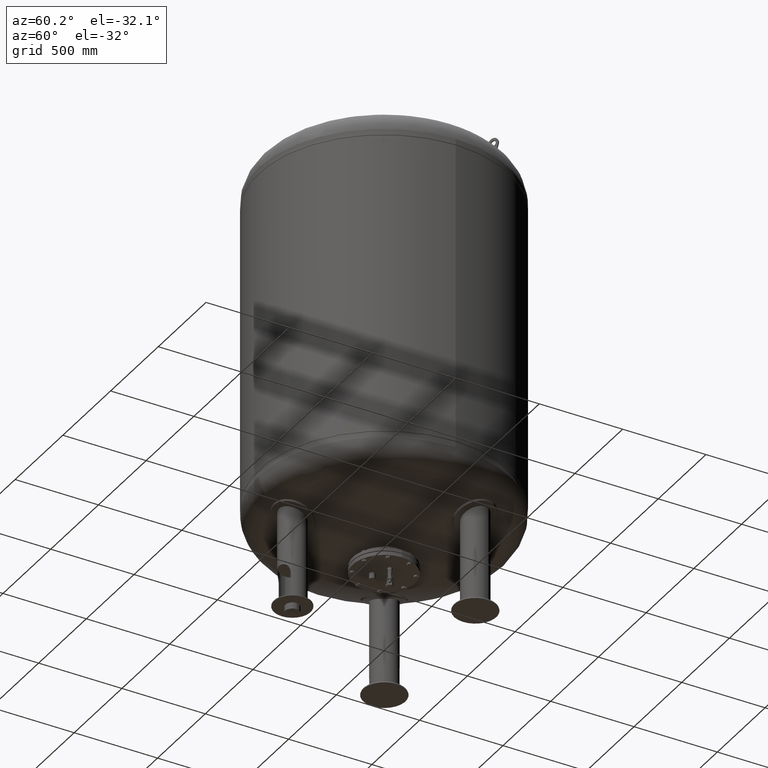
[diagram: clean part render]
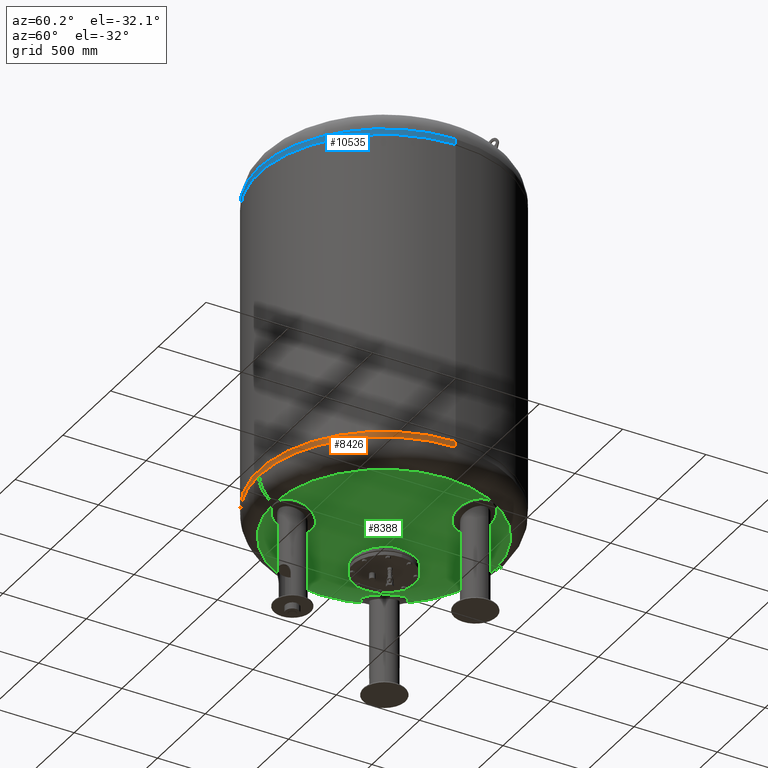
[diagram: same view with three faces highlighted in distinct colors, each labeled with its STEP entity id]
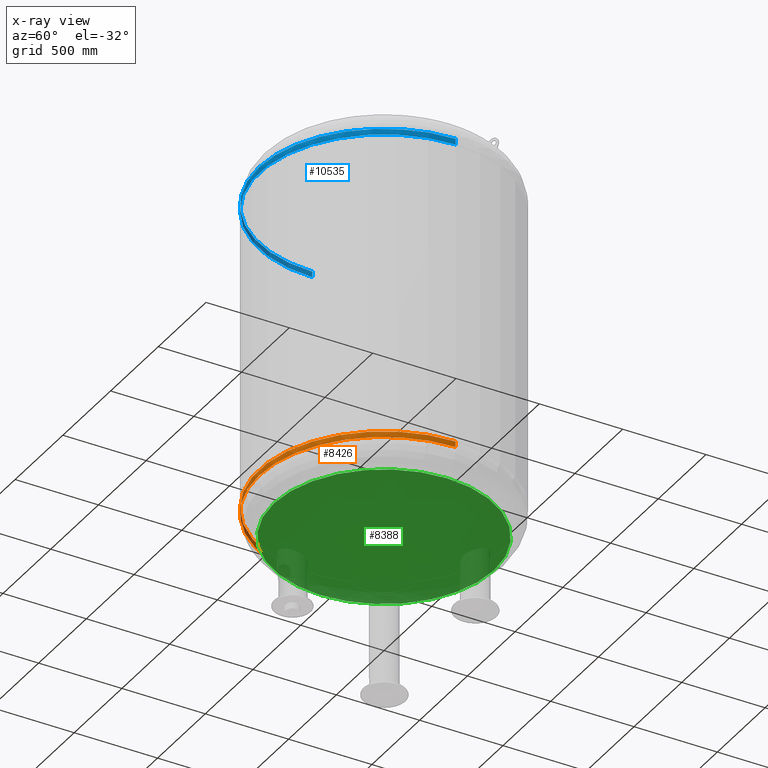
[diagram: x-ray of the same camera — body ghosted, the three highlighted faces saturated]
A machine part, auxiliary view with three faces highlighted in distinct colors.
The next image is the same camera in x-ray (body ghosted, the three faces saturated) — at least one of them is partly hidden behind the body in this view.
Their STEP definitions:

[orange] entity #8426 — the highlighted cylindrical surface (partial cylindrical patch) has radius 750 mm, axis along (-0, -0, 1).
#8274=CARTESIAN_POINT('',(-750.0,-6.062002E-014,819.999999999999890));
#8275=VERTEX_POINT('',#8274);
#8276=CARTESIAN_POINT('',(-750.0,-5.423428E-014,785.237667415897930));
#8277=VERTEX_POINT('',#8276);
#8278=CARTESIAN_POINT('',(-750.0,-6.062002E-014,819.999999999999890));
#8279=DIRECTION('',(0.0,0.0,-1.0));
#8280=VECTOR('',#8279,34.762332584101955);
#8281=LINE('',#8278,#8280);
#8282=EDGE_CURVE('',#8275,#8277,#8281,.T.);
#8284=CARTESIAN_POINT('',(750.0,3.122546E-014,820.000000000000110));
#8285=VERTEX_POINT('',#8284);
#8293=CARTESIAN_POINT('',(750.0,3.761120E-014,785.237667415898160));
#8294=VERTEX_POINT('',#8293);
#8295=CARTESIAN_POINT('',(750.0,3.122546E-014,820.000000000000110));
#8296=DIRECTION('',(0.0,0.0,-1.0));
#8297=VECTOR('',#8296,34.762332584101955);
#8298=LINE('',#8295,#8297);
#8299=EDGE_CURVE('',#8285,#8294,#8298,.T.);
#8325=CARTESIAN_POINT('',(-7.105427E-014,-750.0,785.237667415898040));
#8326=VERTEX_POINT('',#8325);
#8336=CARTESIAN_POINT('',(-5.075605E-014,-5.423428E-014,785.237667415898160));
#8337=DIRECTION('',(0.0,0.0,1.0));
#8338=DIRECTION('',(-1.0,0.0,0.0));
#8339=AXIS2_PLACEMENT_3D('',#8336,#8337,#8338);
#8340=CIRCLE('',#8339,750.0);
#8341=EDGE_CURVE('',#8277,#8326,#8340,.T.);
#8398=CARTESIAN_POINT('',(-5.075605E-014,-5.423428E-014,785.237667415898160));
#8399=DIRECTION('',(0.0,0.0,1.0));
#8400=DIRECTION('',(-1.0,0.0,0.0));
#8401=AXIS2_PLACEMENT_3D('',#8398,#8399,#8400);
#8402=CIRCLE('',#8401,750.0);
#8403=EDGE_CURVE('',#8326,#8294,#8402,.T.);
#8408=CARTESIAN_POINT('',(-5.374415E-014,-5.742715E-014,802.618833707949080));
#8409=DIRECTION('',(-1.719159E-016,-1.836970E-016,1.0));
#8410=DIRECTION('',(-1.0,0.0,0.0));
#8411=AXIS2_PLACEMENT_3D('',#8408,#8409,#8410);
#8412=CYLINDRICAL_SURFACE('',#8411,750.0);
#8413=ORIENTED_EDGE('',*,*,#8282,.T.);
#8414=ORIENTED_EDGE('',*,*,#8341,.T.);
#8415=ORIENTED_EDGE('',*,*,#8403,.T.);
#8416=ORIENTED_EDGE('',*,*,#8299,.F.);
#8417=CARTESIAN_POINT('',(-5.673224E-014,-6.062002E-014,820.0));
#8418=DIRECTION('',(0.0,0.0,1.0));
#8419=DIRECTION('',(-1.0,0.0,0.0));
#8420=AXIS2_PLACEMENT_3D('',#8417,#8418,#8419);
#8421=CIRCLE('',#8420,750.0);
#8422=EDGE_CURVE('',#8275,#8285,#8421,.T.);
#8423=ORIENTED_EDGE('',*,*,#8422,.F.);
#8424=EDGE_LOOP('',(#8413,#8414,#8415,#8416,#8423));
#8425=FACE_OUTER_BOUND('',#8424,.T.);
#8426=ADVANCED_FACE('',(#8425),#8412,.T.);

[blue] entity #10535 — the highlighted cylindrical surface (partial cylindrical patch) has radius 750 mm, axis along (0, -0, -1).
#9664=CARTESIAN_POINT('',(750.0,-6.062002E-014,2645.0));
#9665=VERTEX_POINT('',#9664);
#9666=CARTESIAN_POINT('',(750.0,-5.423428E-014,2679.762332584101800));
#9667=VERTEX_POINT('',#9666);
#9668=CARTESIAN_POINT('',(750.0,-6.062002E-014,2645.0));
#9669=DIRECTION('',(0.0,0.0,1.0));
#9670=VECTOR('',#9669,34.762332584101841);
#9671=LINE('',#9668,#9670);
#9672=EDGE_CURVE('',#9665,#9667,#9671,.T.);
#9674=CARTESIAN_POINT('',(-750.0,3.122546E-014,2645.0));
#9675=VERTEX_POINT('',#9674);
#9683=CARTESIAN_POINT('',(-750.0,3.761120E-014,2679.762332584101800));
#9684=VERTEX_POINT('',#9683);
#9685=CARTESIAN_POINT('',(-750.0,3.122546E-014,2645.0));
#9686=DIRECTION('',(0.0,0.0,1.0));
#9687=VECTOR('',#9686,34.762332584101841);
#9688=LINE('',#9685,#9687);
#9689=EDGE_CURVE('',#9675,#9684,#9688,.T.);
#9778=CARTESIAN_POINT('',(3.489809E-014,-750.0,2679.762332584101800));
#9779=VERTEX_POINT('',#9778);
#9789=CARTESIAN_POINT('',(1.459986E-014,-5.423428E-014,2679.762332584101800));
#9790=DIRECTION('',(0.0,0.0,-1.0));
#9791=DIRECTION('',(1.0,0.0,0.0));
#9792=AXIS2_PLACEMENT_3D('',#9789,#9790,#9791);
#9793=CIRCLE('',#9792,750.0);
#9794=EDGE_CURVE('',#9667,#9779,#9793,.T.);
#10277=CARTESIAN_POINT('',(1.459986E-014,-5.423428E-014,2679.762332584101800));
#10278=DIRECTION('',(0.0,0.0,-1.0));
#10279=DIRECTION('',(1.0,0.0,0.0));
#10280=AXIS2_PLACEMENT_3D('',#10277,#10278,#10279);
#10281=CIRCLE('',#10280,750.0);
#10282=EDGE_CURVE('',#9779,#9684,#10281,.T.);
#10517=CARTESIAN_POINT('',(1.545938E-014,-5.742715E-014,2662.381166292050700));
#10518=DIRECTION('',(4.945121E-017,-1.836970E-016,-1.0));
#10519=DIRECTION('',(1.0,0.0,0.0));
#10520=AXIS2_PLACEMENT_3D('',#10517,#10518,#10519);
#10521=CYLINDRICAL_SURFACE('',#10520,750.0);
#10522=ORIENTED_EDGE('',*,*,#9672,.T.);
#10523=ORIENTED_EDGE('',*,*,#9794,.T.);
#10524=ORIENTED_EDGE('',*,*,#10282,.T.);
#10525=ORIENTED_EDGE('',*,*,#9689,.F.);
#10526=CARTESIAN_POINT('',(1.631890E-014,-6.062002E-014,2645.0));
#10527=DIRECTION('',(0.0,0.0,-1.0));
#10528=DIRECTION('',(1.0,0.0,0.0));
#10529=AXIS2_PLACEMENT_3D('',#10526,#10527,#10528);
#10530=CIRCLE('',#10529,750.0);
#10531=EDGE_CURVE('',#9665,#9675,#10530,.T.);
#10532=ORIENTED_EDGE('',*,*,#10531,.F.);
#10533=EDGE_LOOP('',(#10522,#10523,#10524,#10525,#10532));
#10534=FACE_OUTER_BOUND('',#10533,.T.);
#10535=ADVANCED_FACE('',(#10534),#10521,.T.);

[green] entity #8388 — the highlighted spherical surface has radius 1509 mm.
#8327=CARTESIAN_POINT('',(-4.647817E-014,-660.606666666666800,642.283437133770350));
#8328=VERTEX_POINT('',#8327);
#8344=CARTESIAN_POINT('',(-1.273765E-013,660.606666666666800,642.283437133770800));
#8345=VERTEX_POINT('',#8344);
#8353=CARTESIAN_POINT('',(-660.606666666666800,-2.797401E-014,642.283437133770460));
#8354=VERTEX_POINT('',#8353);
#8355=CARTESIAN_POINT('',(-2.617994E-014,-2.797401E-014,642.283437133770580));
#8356=DIRECTION('',(0.0,0.0,1.0));
#8357=DIRECTION('',(-1.0,0.0,0.0));
#8358=AXIS2_PLACEMENT_3D('',#8355,#8356,#8357);
#8359=CIRCLE('',#8358,660.606666666666800);
#8360=EDGE_CURVE('',#8345,#8354,#8359,.T.);
#8362=CARTESIAN_POINT('',(-2.617994E-014,-2.797401E-014,642.283437133770580));
#8363=DIRECTION('',(0.0,0.0,1.0));
#8364=DIRECTION('',(-1.0,0.0,0.0));
#8365=AXIS2_PLACEMENT_3D('',#8362,#8363,#8364);
#8366=CIRCLE('',#8365,660.606666666666800);
#8367=EDGE_CURVE('',#8354,#8328,#8366,.T.);
#8372=CARTESIAN_POINT('',(-3.455040E-013,-2.771988E-013,1999.0));
#8373=DIRECTION('',(0.0,-1.0,0.0));
#8374=DIRECTION('',(1.0,0.0,0.0));
#8375=AXIS2_PLACEMENT_3D('',#8372,#8373,#8374);
#8376=SPHERICAL_SURFACE('',#8375,1509.0);
#8377=ORIENTED_EDGE('',*,*,#8367,.F.);
#8378=ORIENTED_EDGE('',*,*,#8360,.F.);
#8379=CARTESIAN_POINT('',(-2.617994E-014,-2.797401E-014,642.283437133770580));
#8380=DIRECTION('',(0.0,0.0,1.0));
#8381=DIRECTION('',(-1.0,0.0,0.0));
#8382=AXIS2_PLACEMENT_3D('',#8379,#8380,#8381);
#8383=CIRCLE('',#8382,660.606666666666800);
#8384=EDGE_CURVE('',#8328,#8345,#8383,.T.);
#8385=ORIENTED_EDGE('',*,*,#8384,.F.);
#8386=EDGE_LOOP('',(#8377,#8378,#8385));
#8387=FACE_OUTER_BOUND('',#8386,.T.);
#8388=ADVANCED_FACE('',(#8387),#8376,.T.);